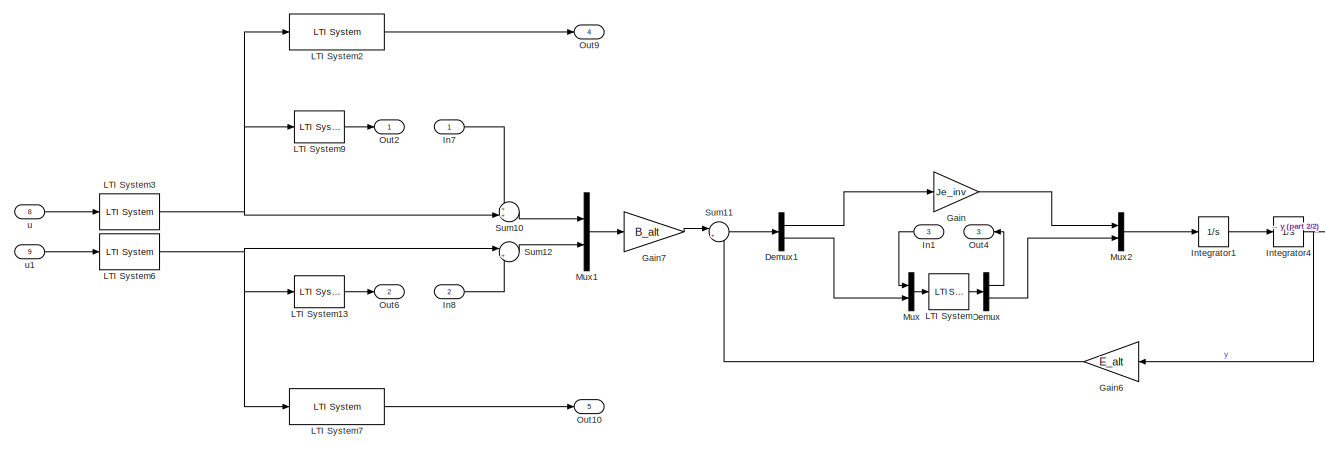
[diagram: root canvas - part 1/2, center side, full height]
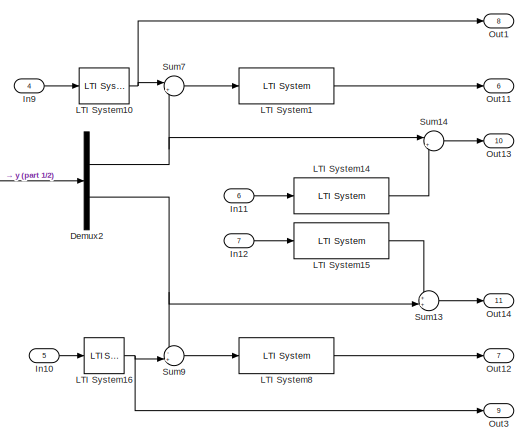
[diagram: root canvas - part 2/2, right side, full height]
MODEL slx_a9822e1464b3
KIND model
CONFIG AbsTol = auto
CONFIG EnableMultiTasking = off
CONFIG FixedStep = auto
CONFIG MaxStep = 0.01
CONFIG MinStep = auto
CONFIG RelTol = 1e-5
CONFIG SampleTimeConstraint = Unconstrained
CONFIG SolverName = VariableStepAuto
CONFIG StartTime = 0.0
CONFIG StopTime = 20
BLOCK [Demux] Demux
  Outputs = 2
BLOCK [Demux] Demux1
  Outputs = 2
BLOCK [Demux] Demux2
  Outputs = 2
BLOCK [Gain] Gain
  Gain = Je_inv
BLOCK [Gain] Gain6
  Gain = E_alt
  Multiplication = Matrix(K*u)
  NameLocation = top
BLOCK [Gain] Gain7
  Gain = B_alt
  Multiplication = Matrix(K*u)
BLOCK [Inport] In1
  NameLocation = top
  Port = 3
BLOCK [Inport] In10
  Port = 5
BLOCK [Inport] In11
  Port = 6
BLOCK [Inport] In12
  Port = 7
BLOCK [Inport] In7
BLOCK [Inport] In8
  Port = 2
BLOCK [Inport] In9
  Port = 4
BLOCK [Integrator] Integrator1
BLOCK [Integrator] Integrator4
BLOCK [Reference] LTI System  REF=cstblocks/LTI System
  SourceBlock = cstblocks/LTI System
  SourceType = LTI Block
BLOCK [Reference] LTI System1  REF=cstblocks/LTI System
  SourceBlock = cstblocks/LTI System
  SourceType = LTI Block
BLOCK [Reference] LTI System10  REF=cstblocks/LTI System
  SourceBlock = cstblocks/LTI System
  SourceType = LTI Block
BLOCK [Reference] LTI System13  REF=cstblocks/LTI System
  SourceBlock = cstblocks/LTI System
  SourceType = LTI Block
BLOCK [Reference] LTI System14  REF=cstblocks/LTI System
  SourceBlock = cstblocks/LTI System
  SourceType = LTI Block
BLOCK [Reference] LTI System15  REF=cstblocks/LTI System
  SourceBlock = cstblocks/LTI System
  SourceType = LTI Block
BLOCK [Reference] LTI System16  REF=cstblocks/LTI System
  SourceBlock = cstblocks/LTI System
  SourceType = LTI Block
BLOCK [Reference] LTI System2  REF=cstblocks/LTI System
  SourceBlock = cstblocks/LTI System
  SourceType = LTI Block
BLOCK [Reference] LTI System3  REF=cstblocks/LTI System
  SourceBlock = cstblocks/LTI System
  SourceType = LTI Block
BLOCK [Reference] LTI System6  REF=cstblocks/LTI System
  SourceBlock = cstblocks/LTI System
  SourceType = LTI Block
BLOCK [Reference] LTI System7  REF=cstblocks/LTI System
  SourceBlock = cstblocks/LTI System
  SourceType = LTI Block
BLOCK [Reference] LTI System8  REF=cstblocks/LTI System
  SourceBlock = cstblocks/LTI System
  SourceType = LTI Block
BLOCK [Reference] LTI System9  REF=cstblocks/LTI System
  SourceBlock = cstblocks/LTI System
  SourceType = LTI Block
BLOCK [Mux] Mux
  DisplayOption = bar
  Inputs = 2
BLOCK [Mux] Mux1
  DisplayOption = bar
  Inputs = 2
BLOCK [Mux] Mux2
  DisplayOption = bar
  Inputs = 2
BLOCK [Outport] Out1
  Port = 8
BLOCK [Outport] Out10
  Port = 5
BLOCK [Outport] Out11
  Port = 6
BLOCK [Outport] Out12
  Port = 7
BLOCK [Outport] Out13
  Port = 10
BLOCK [Outport] Out14
  Port = 11
BLOCK [Outport] Out2
BLOCK [Outport] Out3
  Port = 9
BLOCK [Outport] Out4
  NameLocation = top
  Port = 3
BLOCK [Outport] Out6
  Port = 2
BLOCK [Outport] Out9
  Port = 4
BLOCK [Sum] Sum10
  Inputs = ++|
BLOCK [Sum] Sum11
  Inputs = |++
BLOCK [Sum] Sum12
  Inputs = |++
BLOCK [Sum] Sum13
  Inputs = ++|
BLOCK [Sum] Sum14
  Inputs = |++
BLOCK [Sum] Sum7
  Inputs = |+-
BLOCK [Sum] Sum9
  Inputs = -+|
BLOCK [Inport] u
  Port = 8
BLOCK [Inport] u1
  Port = 9
LINE Demux1:1 -> Gain:1
LINE Demux1:2 -> Mux:2
NET Demux2:1 -> Sum14:1, Sum7:2
NET Demux2:2 -> Sum13:2, Sum9:1
LINE Demux:1 -> Out4:1
LINE Demux:2 -> Mux2:2
LINE Gain6:1 -> Sum11:2
LINE Gain7:1 -> Sum11:1
LINE Gain:1 -> Mux2:1
LINE In10:1 -> LTI System16:1
LINE In11:1 -> LTI System14:1
LINE In12:1 -> LTI System15:1
LINE In1:1 -> Mux:1
LINE In7:1 -> Sum10:1
LINE In8:1 -> Sum12:2
LINE In9:1 -> LTI System10:1
LINE Integrator1:1 -> Integrator4:1
NET Integrator4:1 -> Demux2:1, Gain6:1
NET LTI System10:1 -> Out1:1, Sum7:1
LINE LTI System13:1 -> Out6:1
LINE LTI System14:1 -> Sum14:2
LINE LTI System15:1 -> Sum13:1
NET LTI System16:1 -> Out3:1, Sum9:2
LINE LTI System1:1 -> Out11:1
LINE LTI System2:1 -> Out9:1
NET LTI System3:1 -> LTI System2:1, LTI System9:1, Sum10:2
NET LTI System6:1 -> LTI System13:1, LTI System7:1, Sum12:1
LINE LTI System7:1 -> Out10:1
LINE LTI System8:1 -> Out12:1
LINE LTI System9:1 -> Out2:1
LINE LTI System:1 -> Demux:1
LINE Mux1:1 -> Gain7:1
LINE Mux2:1 -> Integrator1:1
LINE Mux:1 -> LTI System:1
LINE Sum10:1 -> Mux1:1
LINE Sum11:1 -> Demux1:1
LINE Sum12:1 -> Mux1:2
LINE Sum13:1 -> Out14:1
LINE Sum14:1 -> Out13:1
LINE Sum7:1 -> LTI System1:1
LINE Sum9:1 -> LTI System8:1
LINE u1:1 -> LTI System6:1
LINE u:1 -> LTI System3:1
note: NET lines group one-source signal fan-out (src -> all destinations, sorted); 1:1 wires keep LINE
